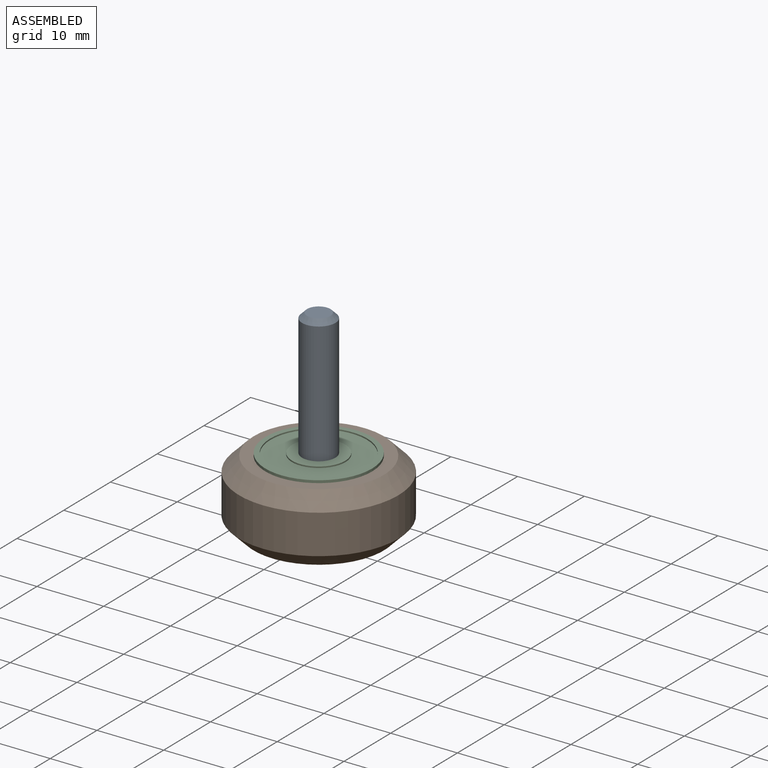
[diagram: assembled view]
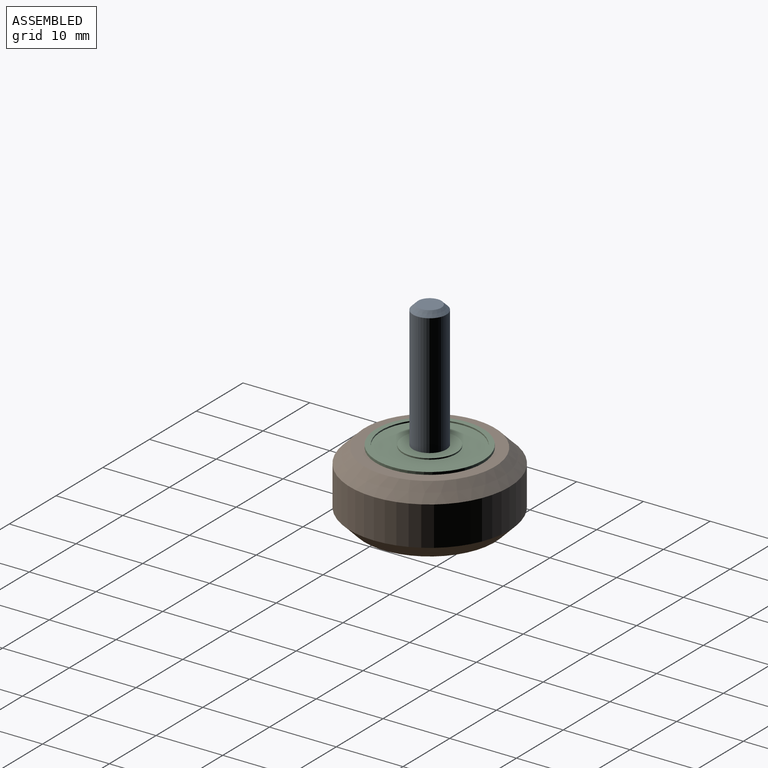
[diagram: assembled view, second angle]
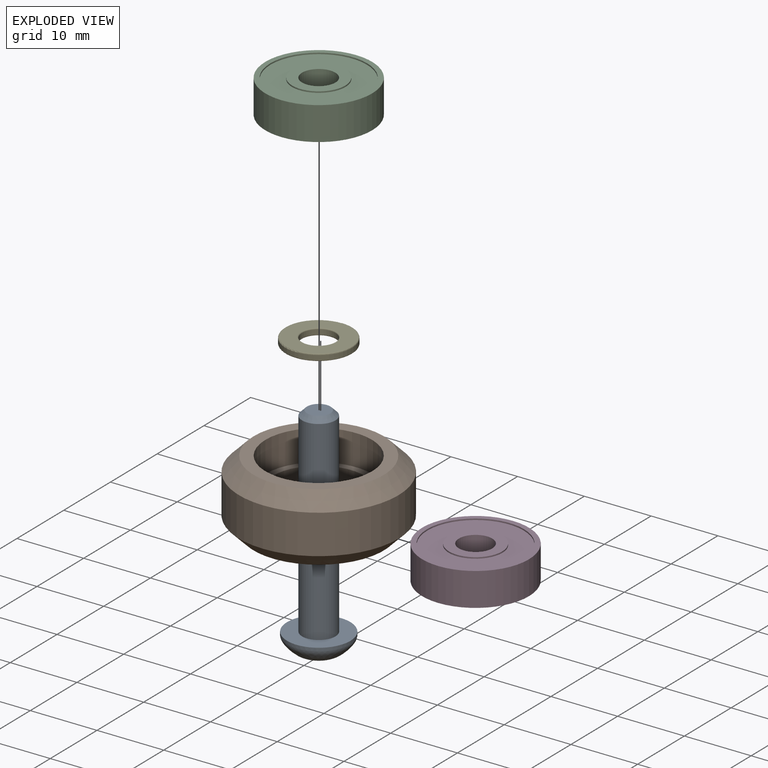
[diagram: exploded view]
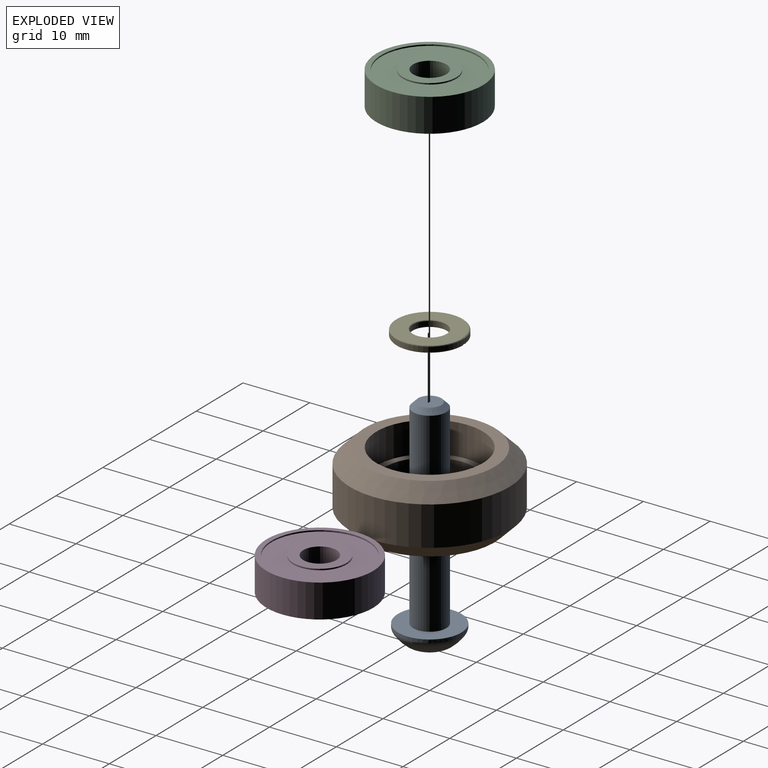
[diagram: exploded view, second angle]
ASSEMBLY  parts=5 mates=4
PART A: 14 faces, bbox 9.5x9.5x32.8 mm
  f0: plane 5.01x5.01mm, normal (0,0,1), area 11.8mm2, adj f3,f4,f5,f6,f7,f8,f10
  f1: cylinder r=4.75mm len=9.5mm, axis (0,0,-1), area 14.9mm2, adj f2,f10
  f2: plane 9.5x9.5mm, normal (0,0,-1), area 51.2mm2, adj f1,f11
  f3: plane 1.5x1.5mm, normal (-0.87,-0.5,0), area 2.6mm2, adj f0,f4,f8,f9
  f4: plane 1.73x1.5mm, normal (0,-1,0), area 2.6mm2, adj f0,f3,f5,f9
  f5: plane 1.5x1.5mm, normal (0.87,-0.5,0), area 2.6mm2, adj f0,f4,f6,f9
  f6: plane 1.5x1.5mm, normal (0.87,0.5,0), area 2.6mm2, adj f0,f5,f7,f9
  f7: plane 1.73x1.5mm, normal (0,1,0), area 2.6mm2, adj f0,f6,f8,f9
  f8: plane 1.5x1.5mm, normal (-0.87,0.5,0), area 2.6mm2, adj f0,f3,f7,f9
  f9: plane 3.46x3mm, normal (0,0,1), area 7.8mm2, adj f3,f4,f5,f6,f7,f8
  f10: bspline ~9.5x9.5mm, area 78.3mm2, adj f0,f1
  f11: cylinder r=2.5mm len=29.25mm, axis (0,0,1), area 459.5mm2, adj f2,f13
  f12: plane 3.5x3.5mm, normal (0,0,-1), area 9.6mm2, adj f13
  f13: cone r=1.75mm half-angle=45deg, axis (0,0,1), area 14.2mm2, adj f11,f12
PART B: 10 faces, bbox 10.2x23.9x23.9 mm
  f0: cylinder r=11.95mm len=23.89mm, axis (-1,0,0), area 441.3mm2, adj f1,f9
  f1: cone r=11.95mm half-angle=45deg, axis (1,0,0), area 209.8mm2, adj f0,f2
  f2: plane 19.54x19.54mm, normal (-1,0,0), area 99.5mm2, adj f1,f3
  f3: cylinder r=7.99mm len=15.97mm, axis (-1,0,0), area 231.6mm2, adj f2,f4
  f4: plane 15.97x15.97mm, normal (-1,0,0), area 48.9mm2, adj f3,f5
  f5: cylinder r=6.94mm len=13.89mm, axis (-1,0,0), area 43.6mm2, adj f4,f6
  f6: plane 15.97x15.97mm, normal (1,0,0), area 48.9mm2, adj f5,f7
  f7: cylinder r=7.99mm len=15.97mm, axis (-1,0,0), area 231.6mm2, adj f6,f8
  f8: plane 19.54x19.54mm, normal (1,0,0), area 99.5mm2, adj f7,f9
  f9: cone r=11.95mm half-angle=45deg, axis (-1,0,0), area 209.8mm2, adj f0,f8
PART C: 12 faces, bbox 16x16x5 mm
  f0: plane 14.5x14.5mm, normal (0,0,1), area 114.9mm2, adj f1,f4
  f1: cylinder r=4mm len=8mm, axis (0,0,-1), area 5mm2, adj f0,f3
  f2: cylinder r=2.5mm len=5mm, axis (0,0,-1), area 78.5mm2, adj f3,f9
  f3: plane 8x8mm, normal (0,0,1), area 30.6mm2, adj f1,f2
  f4: cylinder r=7.25mm len=14.5mm, axis (0,0,-1), area 9.1mm2, adj f0,f6
  f5: cylinder r=8mm len=16mm, axis (0,0,-1), area 251.3mm2, adj f6,f11
  f6: plane 16x16mm, normal (0,0,1), area 35.9mm2, adj f4,f5
  f7: plane 14.5x14.5mm, normal (0,0,-1), area 114.9mm2, adj f8,f10
  f8: cylinder r=4mm len=8mm, axis (0,0,1), area 5mm2, adj f7,f9
  f9: plane 8x8mm, normal (0,0,-1), area 30.6mm2, adj f2,f8
  f10: cylinder r=7.25mm len=14.5mm, axis (0,0,1), area 9.1mm2, adj f7,f11
  f11: plane 16x16mm, normal (0,0,-1), area 35.9mm2, adj f5,f10
PART D: same geometry as C
PART E: 8 faces, bbox 1x10.8x10.8 mm
  f0: torus R=2.65mm, axis (-1,0,0), area 3.8mm2, adj f1,f7
  f1: cylinder r=2.5mm len=5mm, axis (-1,0,0), area 11mm2, adj f0,f2
  f2: torus R=2.65mm, axis (-1,0,0), area 3.8mm2, adj f1,f3
  f3: plane 9.7x9.7mm, normal (1,0,0), area 51.8mm2, adj f2,f4
  f4: torus R=4.85mm, axis (-1,0,0), area 7.3mm2, adj f3,f5
  f5: cylinder r=5mm len=10mm, axis (-1,0,0), area 22mm2, adj f4,f6
  f6: torus R=4.85mm, axis (-1,0,0), area 7.3mm2, adj f5,f7
  f7: plane 9.7x9.7mm, normal (-1,0,0), area 51.8mm2, adj f0,f6
PLACE A rot(axis=(1,0,0),180deg) t=(72.58,13.06,8.35)mm
PLACE B rot(axis=(0.71,0,-0.71),180deg) t=(10.08,13.06,13.85)mm
PLACE C t=(10.08,13.06,16.85)mm
PLACE D t=(10.08,13.06,10.85)mm
PLACE E rot(axis=(0.71,0,-0.71),180deg) t=(10.08,13.06,13.85)mm
MATE fastened E.f0 <-> D.f1  axis (0,0,-1) through (10.08,13.06,13.35)mm
MATE fastened B.f0 <-> D.f1  axis (0,0,-1) through (10.08,13.06,13.35)mm
MATE fastened A.f1 <-> D.f1  axis (0,0,1) through (10.08,13.06,8.35)mm
MATE fastened C.f1 <-> B.f0  axis (0,0,-1) through (10.08,13.06,14.35)mm
